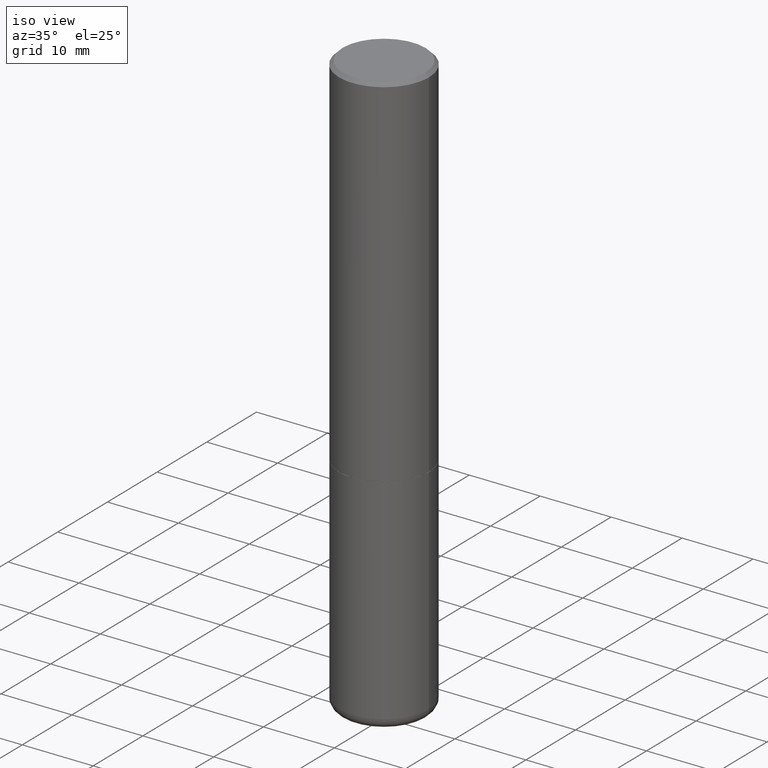
[diagram: clean part render]
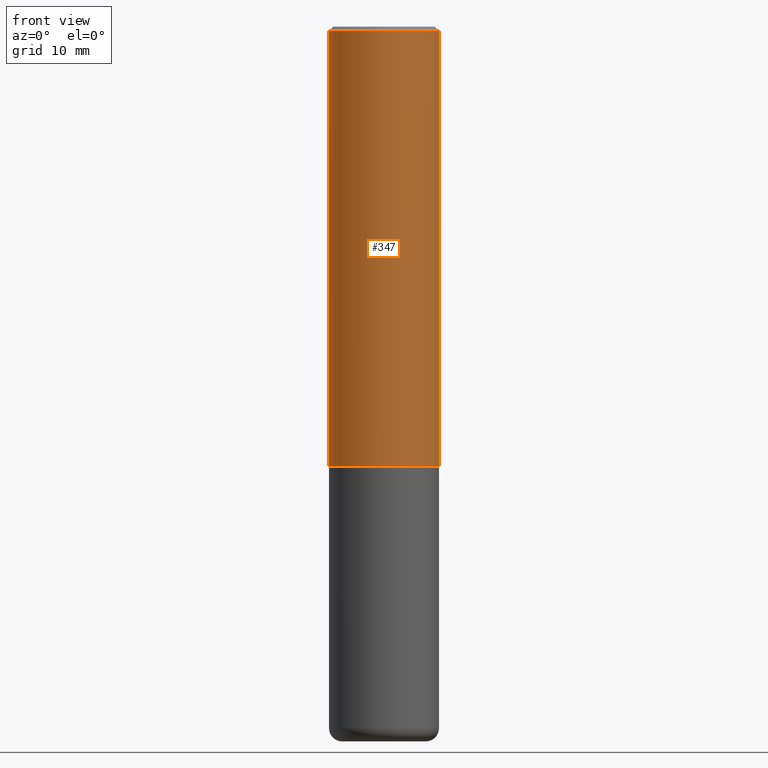
[diagram: tour spotlight — one face highlighted and labeled with its STEP entity id]
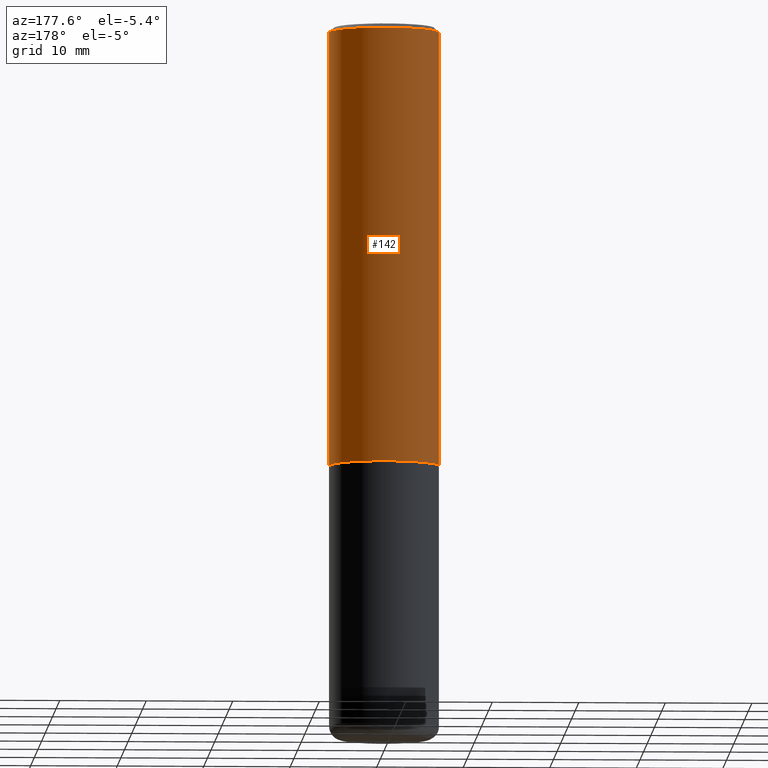
[diagram: tour spotlight — one face highlighted and labeled with its STEP entity id]
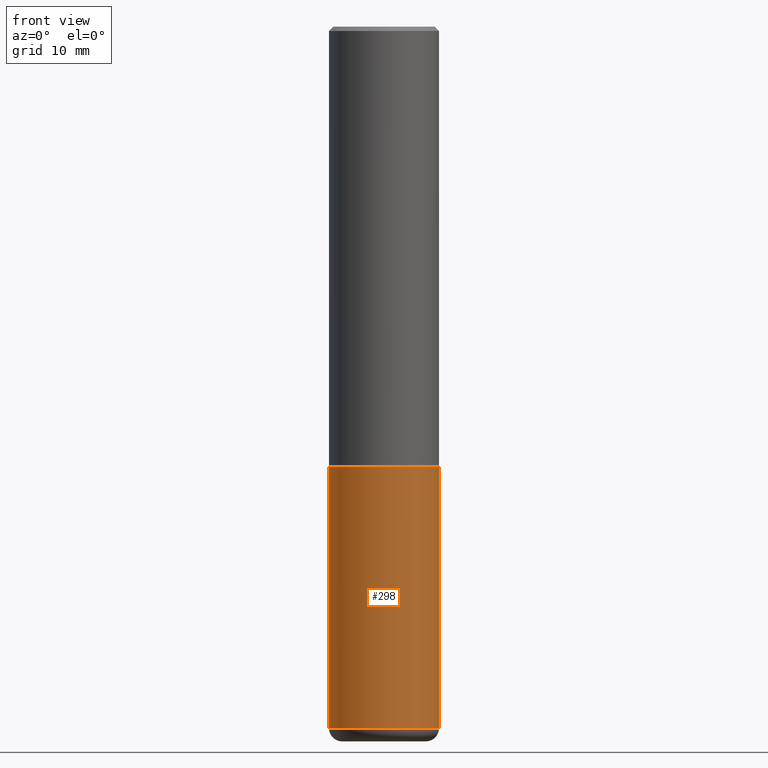
[diagram: tour spotlight — one face highlighted and labeled with its STEP entity id]
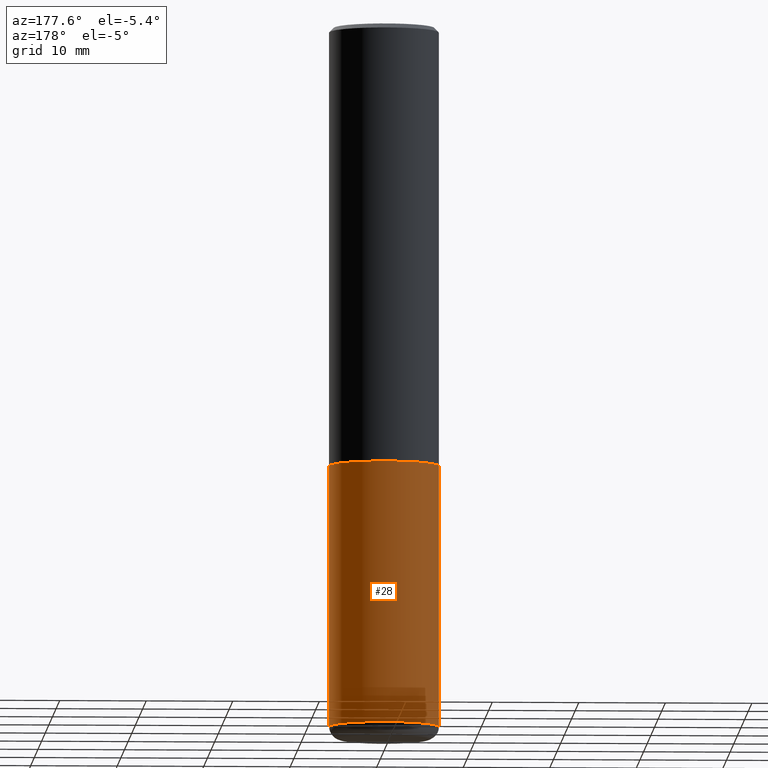
[diagram: tour spotlight — one face highlighted and labeled with its STEP entity id]
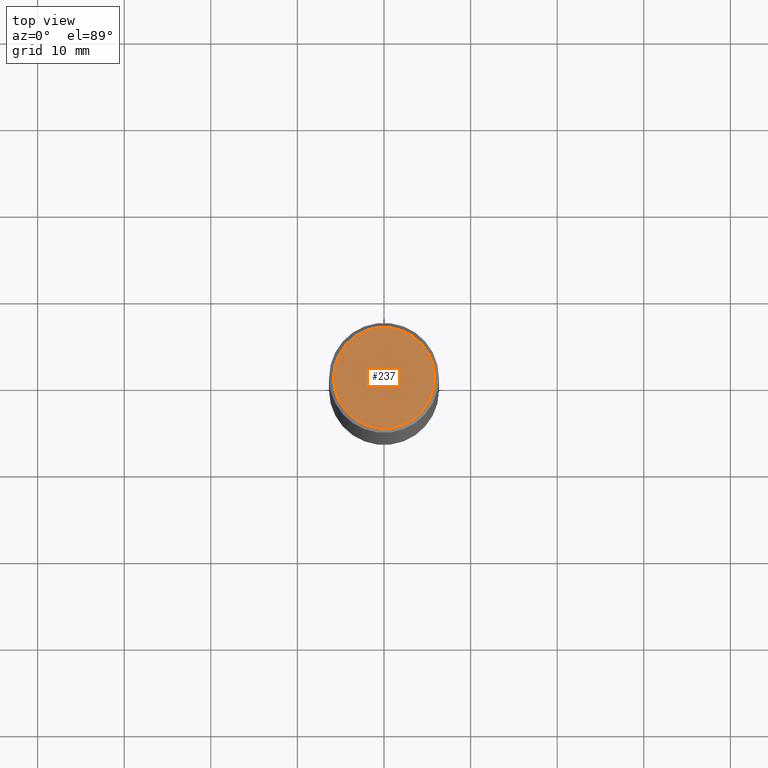
[diagram: tour spotlight — one face highlighted and labeled with its STEP entity id]
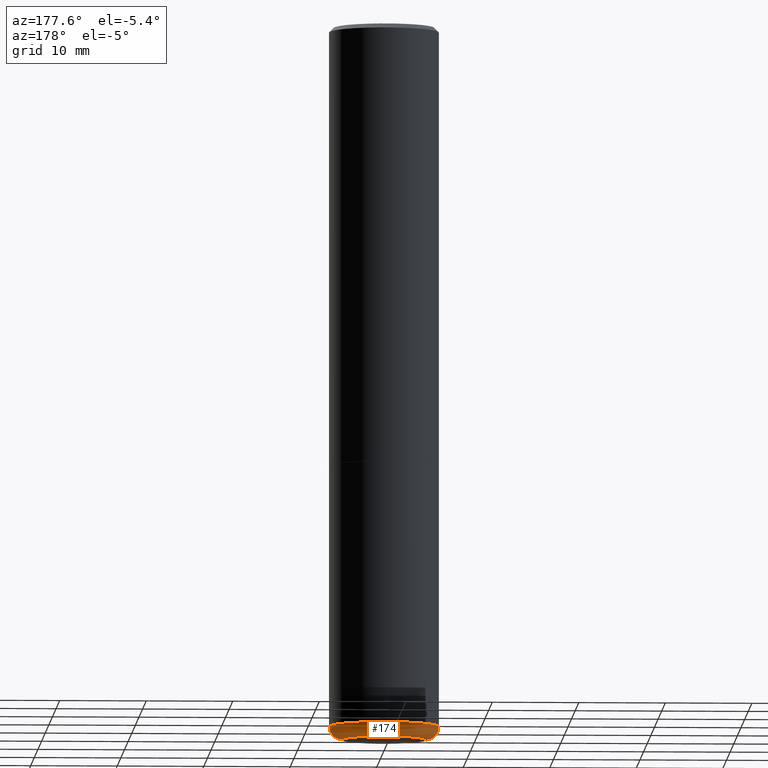
[diagram: tour spotlight — one face highlighted and labeled with its STEP entity id]
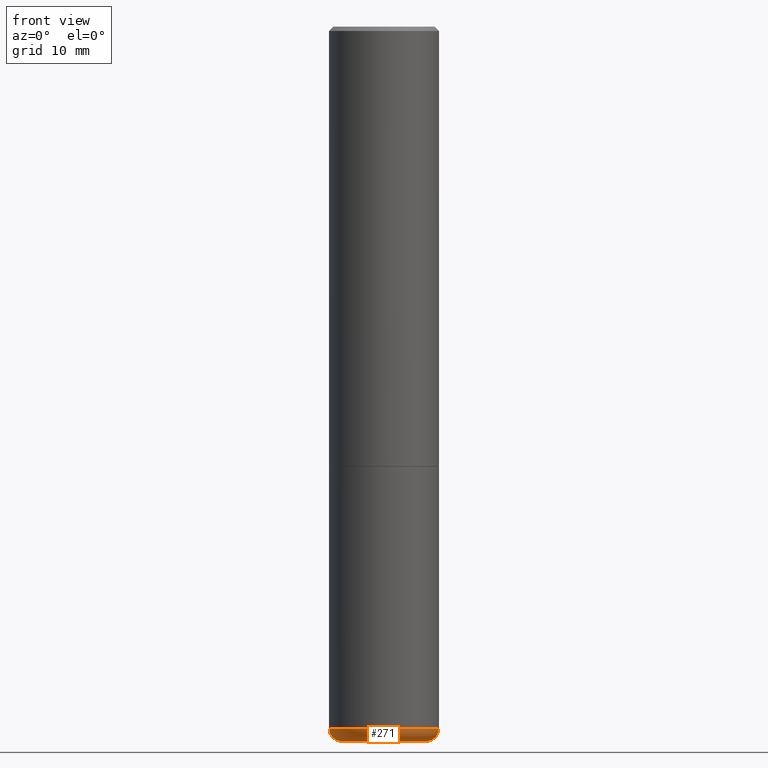
[diagram: tour spotlight — one face highlighted and labeled with its STEP entity id]
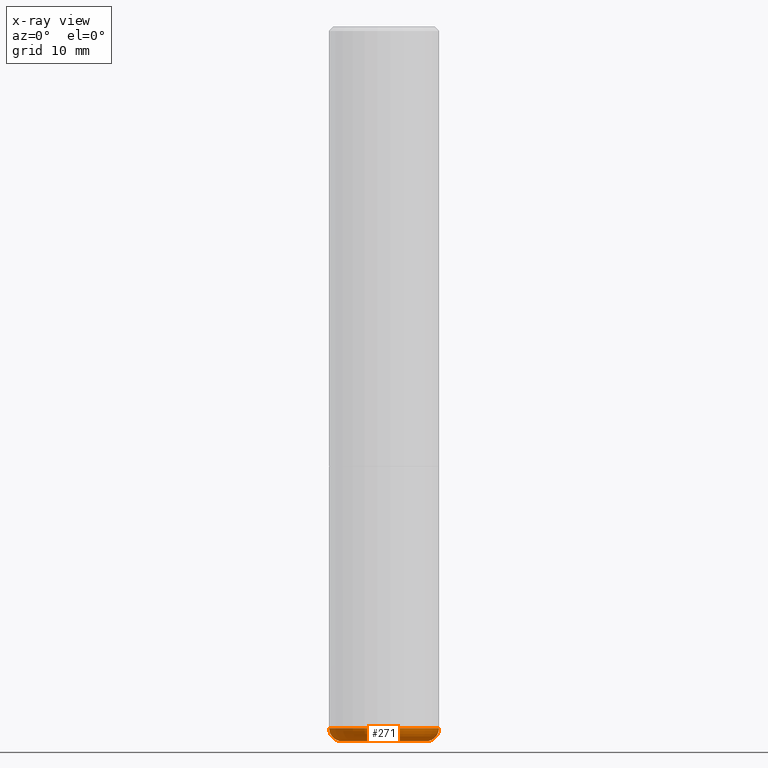
[diagram: x-ray of the same camera — body ghosted, this tour face saturated]
A machine part: a face-by-face anatomy tour. The part has 14 B-rep faces; the first image is the clean iso view, then the 7 largest visible faces are spotlighted one at a time (largest first), each with its STEP entity span.

Face 1 — front view, entity #347. In plain terms, the highlighted cylindrical surface (partial cylindrical patch) has radius 6.35 mm, axis along (-0, 0, 1).
Definition (entity closure, byte-faithful):
#10 = EDGE_CURVE ( 'NONE', #52, #260, #418, .T. ) ;
#11 = CIRCLE ( 'NONE', #190, 0.2499999999999999167 ) ;
#23 = CARTESIAN_POINT ( 'NONE',  ( 4.888492143564087591E-29, -6.979471196347447369E-15, -1.998999999999999888 ) ) ;
#52 = VERTEX_POINT ( 'NONE', #162 ) ;
#53 = DIRECTION ( 'NONE',  ( -2.445468806185136877E-29, 3.491481338843145188E-15, 1.000000000000000000 ) ) ;
#56 = DIRECTION ( 'NONE',  ( -2.445468806185136597E-29, 3.491481338843145583E-15, 1.000000000000000000 ) ) ;
#65 = ORIENTED_EDGE ( 'NONE', *, *, #370, .T. ) ;
#72 = CARTESIAN_POINT ( 'NONE',  ( -0.2500000000000002776, -1.748293572161900530E-15, -1.998999999999999888 ) ) ;
#80 = VECTOR ( 'NONE', #53, 39.37007874015748143 ) ;
#104 = EDGE_CURVE ( 'NONE', #391, #260, #11, .T. ) ;
#111 = LINE ( 'NONE', #343, #80 ) ;
#124 = CARTESIAN_POINT ( 'NONE',  ( 0.2500000000000001110, -1.745740669421567467E-15, 1.219044193948984509E-29 ) ) ;
#153 = FACE_OUTER_BOUND ( 'NONE', #233, .T. ) ;
#162 = CARTESIAN_POINT ( 'NONE',  ( 0.2500000000000002776, -8.725211865769015625E-15, -1.998999999999999888 ) ) ;
#180 = DIRECTION ( 'NONE',  ( 1.000000000000000000, -6.982962677686266711E-15, 4.876176775795935793E-29 ) ) ;
#182 = VERTEX_POINT ( 'NONE', #72 ) ;
#183 = CIRCLE ( 'NONE', #315, 0.2500000000000002776 ) ;
#186 = DIRECTION ( 'NONE',  ( 1.000000000000000000, -6.982962677686266711E-15, 0.000000000000000000 ) ) ;
#190 = AXIS2_PLACEMENT_3D ( 'NONE', #272, #297, #367 ) ;
#233 = EDGE_LOOP ( 'NONE', ( #380, #65, #344, #409 ) ) ;
#244 = DIRECTION ( 'NONE',  ( -2.445468806185136597E-29, 3.491481338843145583E-15, 1.000000000000000000 ) ) ;
#260 = VERTEX_POINT ( 'NONE', #348 ) ;
#266 = DIRECTION ( 'NONE',  ( -2.445468806185136877E-29, 3.491481338843145188E-15, 1.000000000000000000 ) ) ;
#272 = CARTESIAN_POINT ( 'NONE',  ( 4.890937612370287172E-31, -6.982962677686310098E-17, -0.02000000000000005593 ) ) ;
#297 = DIRECTION ( 'NONE',  ( -2.445468806185136597E-29, 3.491481338843145583E-15, 1.000000000000000000 ) ) ;
#300 = AXIS2_PLACEMENT_3D ( 'NONE', #373, #244, #180 ) ;
#315 = AXIS2_PLACEMENT_3D ( 'NONE', #23, #56, #186 ) ;
#340 = CARTESIAN_POINT ( 'NONE',  ( -0.2499999999999999167, 1.675911042644703182E-15, -0.02000000000000005593 ) ) ;
#341 = EDGE_CURVE ( 'NONE', #182, #391, #111, .T. ) ;
#343 = CARTESIAN_POINT ( 'NONE',  ( -0.2500000000000001110, 1.776356839400251254E-15, -1.229733772563727006E-29 ) ) ;
#344 = ORIENTED_EDGE ( 'NONE', *, *, #10, .T. ) ;
#347 = ADVANCED_FACE ( 'NONE', ( #153 ), #408, .T. ) ;
#348 = CARTESIAN_POINT ( 'NONE',  ( 0.2499999999999999167, -1.784954126219745400E-15, -0.02000000000000005593 ) ) ;
#367 = DIRECTION ( 'NONE',  ( 1.000000000000000000, -6.982962677686267499E-15, 0.000000000000000000 ) ) ;
#370 = EDGE_CURVE ( 'NONE', #182, #52, #183, .T. ) ;
#373 = CARTESIAN_POINT ( 'NONE',  ( 0.000000000000000000, 0.000000000000000000, 0.000000000000000000 ) ) ;
#380 = ORIENTED_EDGE ( 'NONE', *, *, #341, .F. ) ;
#391 = VERTEX_POINT ( 'NONE', #340 ) ;
#398 = VECTOR ( 'NONE', #266, 39.37007874015748143 ) ;
#408 = CYLINDRICAL_SURFACE ( 'NONE', #300, 0.2500000000000001110 ) ;
#409 = ORIENTED_EDGE ( 'NONE', *, *, #104, .F. ) ;
#418 = LINE ( 'NONE', #124, #398 ) ;

Face 2 — auxiliary view, entity #142. In plain terms, the highlighted cylindrical surface (partial cylindrical patch) has radius 6.35 mm, axis along (-0, 0, 1).
Definition (entity closure, byte-faithful):
#1 = EDGE_CURVE ( 'NONE', #260, #391, #147, .T. ) ;
#10 = EDGE_CURVE ( 'NONE', #52, #260, #418, .T. ) ;
#13 = DIRECTION ( 'NONE',  ( 1.000000000000000000, -6.982962677686266711E-15, 0.000000000000000000 ) ) ;
#15 = CARTESIAN_POINT ( 'NONE',  ( 0.000000000000000000, 0.000000000000000000, 0.000000000000000000 ) ) ;
#52 = VERTEX_POINT ( 'NONE', #162 ) ;
#53 = DIRECTION ( 'NONE',  ( -2.445468806185136877E-29, 3.491481338843145188E-15, 1.000000000000000000 ) ) ;
#54 = AXIS2_PLACEMENT_3D ( 'NONE', #15, #109, #362 ) ;
#59 = ORIENTED_EDGE ( 'NONE', *, *, #114, .T. ) ;
#62 = DIRECTION ( 'NONE',  ( -2.445468806185136597E-29, 3.491481338843145583E-15, 1.000000000000000000 ) ) ;
#72 = CARTESIAN_POINT ( 'NONE',  ( -0.2500000000000002776, -1.748293572161900530E-15, -1.998999999999999888 ) ) ;
#80 = VECTOR ( 'NONE', #53, 39.37007874015748143 ) ;
#91 = EDGE_LOOP ( 'NONE', ( #59, #154, #166, #372 ) ) ;
#108 = FACE_OUTER_BOUND ( 'NONE', #91, .T. ) ;
#109 = DIRECTION ( 'NONE',  ( -2.445468806185136597E-29, 3.491481338843145583E-15, 1.000000000000000000 ) ) ;
#111 = LINE ( 'NONE', #343, #80 ) ;
#114 = EDGE_CURVE ( 'NONE', #52, #182, #209, .T. ) ;
#124 = CARTESIAN_POINT ( 'NONE',  ( 0.2500000000000001110, -1.745740669421567467E-15, 1.219044193948984509E-29 ) ) ;
#140 = DIRECTION ( 'NONE',  ( -2.445468806185136597E-29, 3.491481338843145583E-15, 1.000000000000000000 ) ) ;
#142 = ADVANCED_FACE ( 'NONE', ( #108 ), #333, .T. ) ;
#143 = CARTESIAN_POINT ( 'NONE',  ( 4.888492143564087591E-29, -6.979471196347447369E-15, -1.998999999999999888 ) ) ;
#147 = CIRCLE ( 'NONE', #397, 0.2499999999999999167 ) ;
#154 = ORIENTED_EDGE ( 'NONE', *, *, #341, .T. ) ;
#162 = CARTESIAN_POINT ( 'NONE',  ( 0.2500000000000002776, -8.725211865769015625E-15, -1.998999999999999888 ) ) ;
#166 = ORIENTED_EDGE ( 'NONE', *, *, #1, .F. ) ;
#182 = VERTEX_POINT ( 'NONE', #72 ) ;
#192 = CARTESIAN_POINT ( 'NONE',  ( 4.890937612370287172E-31, -6.982962677686310098E-17, -0.02000000000000005593 ) ) ;
#209 = CIRCLE ( 'NONE', #274, 0.2500000000000002776 ) ;
#260 = VERTEX_POINT ( 'NONE', #348 ) ;
#266 = DIRECTION ( 'NONE',  ( -2.445468806185136877E-29, 3.491481338843145188E-15, 1.000000000000000000 ) ) ;
#267 = DIRECTION ( 'NONE',  ( 1.000000000000000000, -6.982962677686267499E-15, 0.000000000000000000 ) ) ;
#274 = AXIS2_PLACEMENT_3D ( 'NONE', #143, #140, #13 ) ;
#333 = CYLINDRICAL_SURFACE ( 'NONE', #54, 0.2500000000000001110 ) ;
#340 = CARTESIAN_POINT ( 'NONE',  ( -0.2499999999999999167, 1.675911042644703182E-15, -0.02000000000000005593 ) ) ;
#341 = EDGE_CURVE ( 'NONE', #182, #391, #111, .T. ) ;
#343 = CARTESIAN_POINT ( 'NONE',  ( -0.2500000000000001110, 1.776356839400251254E-15, -1.229733772563727006E-29 ) ) ;
#348 = CARTESIAN_POINT ( 'NONE',  ( 0.2499999999999999167, -1.784954126219745400E-15, -0.02000000000000005593 ) ) ;
#362 = DIRECTION ( 'NONE',  ( 1.000000000000000000, -6.982962677686266711E-15, 4.876176775795935793E-29 ) ) ;
#372 = ORIENTED_EDGE ( 'NONE', *, *, #10, .F. ) ;
#391 = VERTEX_POINT ( 'NONE', #340 ) ;
#397 = AXIS2_PLACEMENT_3D ( 'NONE', #192, #62, #267 ) ;
#398 = VECTOR ( 'NONE', #266, 39.37007874015748143 ) ;
#418 = LINE ( 'NONE', #124, #398 ) ;

Face 3 — front view, entity #298. In plain terms, the highlighted cylindrical surface (partial cylindrical patch) has radius 6.35 mm, axis along (-0, 0, 1).
Definition (entity closure, byte-faithful):
#12 = CARTESIAN_POINT ( 'NONE',  ( -0.2499999999999999722, -9.361468631509382488E-15, -3.189999999999999947 ) ) ;
#17 = CIRCLE ( 'NONE', #345, 0.2500000000000000000 ) ;
#18 = EDGE_CURVE ( 'NONE', #220, #314, #93, .T. ) ;
#42 = AXIS2_PLACEMENT_3D ( 'NONE', #83, #87, #113 ) ;
#43 = LINE ( 'NONE', #106, #69 ) ;
#49 = DIRECTION ( 'NONE',  ( -2.445468806185136877E-29, 3.491481338843145188E-15, 1.000000000000000000 ) ) ;
#66 = ORIENTED_EDGE ( 'NONE', *, *, #136, .F. ) ;
#69 = VECTOR ( 'NONE', #49, 39.37007874015748143 ) ;
#73 = CARTESIAN_POINT ( 'NONE',  ( 0.2499999999999999722, -1.288356614033120121E-14, -3.189999999999999947 ) ) ;
#81 = FACE_OUTER_BOUND ( 'NONE', #411, .T. ) ;
#83 = CARTESIAN_POINT ( 'NONE',  ( 0.000000000000000000, 0.000000000000000000, 0.000000000000000000 ) ) ;
#84 = EDGE_CURVE ( 'NONE', #220, #194, #86, .T. ) ;
#86 = CIRCLE ( 'NONE', #148, 0.2500000000000000000 ) ;
#87 = DIRECTION ( 'NONE',  ( -2.445468806185136597E-29, 3.491481338843145583E-15, 1.000000000000000000 ) ) ;
#93 = LINE ( 'NONE', #229, #293 ) ;
#99 = DIRECTION ( 'NONE',  ( -2.445468806185136877E-29, 3.491481338843145188E-15, 1.000000000000000000 ) ) ;
#106 = CARTESIAN_POINT ( 'NONE',  ( 0.2500000000000000000, -1.745740669421566678E-15, 1.219044193948983948E-29 ) ) ;
#113 = DIRECTION ( 'NONE',  ( 1.000000000000000000, -6.982962677686266711E-15, 4.876176775795935793E-29 ) ) ;
#136 = EDGE_CURVE ( 'NONE', #314, #199, #17, .T. ) ;
#139 = CARTESIAN_POINT ( 'NONE',  ( 0.2500000000000000000, -8.728703347107857054E-15, -2.000000000000000000 ) ) ;
#148 = AXIS2_PLACEMENT_3D ( 'NONE', #295, #207, #175 ) ;
#171 = DIRECTION ( 'NONE',  ( 1.000000000000000000, -6.982962677686266711E-15, 0.000000000000000000 ) ) ;
#175 = DIRECTION ( 'NONE',  ( 1.000000000000000000, -6.982962677686270655E-15, 0.000000000000000000 ) ) ;
#194 = VERTEX_POINT ( 'NONE', #73 ) ;
#199 = VERTEX_POINT ( 'NONE', #139 ) ;
#206 = CARTESIAN_POINT ( 'NONE',  ( 4.890937612370273194E-29, -6.982962677686291165E-15, -2.000000000000000000 ) ) ;
#207 = DIRECTION ( 'NONE',  ( -2.445468806185136597E-29, 3.491481338843145583E-15, 1.000000000000000000 ) ) ;
#218 = EDGE_CURVE ( 'NONE', #194, #199, #43, .T. ) ;
#220 = VERTEX_POINT ( 'NONE', #12 ) ;
#227 = ORIENTED_EDGE ( 'NONE', *, *, #18, .F. ) ;
#229 = CARTESIAN_POINT ( 'NONE',  ( -0.2500000000000000000, 1.776356839400250465E-15, -1.229733772563726445E-29 ) ) ;
#277 = CYLINDRICAL_SURFACE ( 'NONE', #42, 0.2500000000000000000 ) ;
#289 = ORIENTED_EDGE ( 'NONE', *, *, #84, .T. ) ;
#293 = VECTOR ( 'NONE', #99, 39.37007874015748143 ) ;
#295 = CARTESIAN_POINT ( 'NONE',  ( 7.801045491730585789E-29, -1.113782547090963453E-14, -3.189999999999999947 ) ) ;
#298 = ADVANCED_FACE ( 'NONE', ( #81 ), #277, .T. ) ;
#311 = CARTESIAN_POINT ( 'NONE',  ( -0.2500000000000000000, -7.284037234897712778E-15, -2.000000000000000000 ) ) ;
#314 = VERTEX_POINT ( 'NONE', #311 ) ;
#345 = AXIS2_PLACEMENT_3D ( 'NONE', #206, #400, #171 ) ;
#349 = ORIENTED_EDGE ( 'NONE', *, *, #218, .T. ) ;
#400 = DIRECTION ( 'NONE',  ( -2.445468806185136597E-29, 3.491481338843145583E-15, 1.000000000000000000 ) ) ;
#411 = EDGE_LOOP ( 'NONE', ( #227, #289, #349, #66 ) ) ;

Face 4 — auxiliary view, entity #28. In plain terms, the highlighted cylindrical surface (partial cylindrical patch) has radius 6.35 mm, axis along (-0, 0, 1).
Definition (entity closure, byte-faithful):
#12 = CARTESIAN_POINT ( 'NONE',  ( -0.2499999999999999722, -9.361468631509382488E-15, -3.189999999999999947 ) ) ;
#16 = AXIS2_PLACEMENT_3D ( 'NONE', #39, #168, #291 ) ;
#18 = EDGE_CURVE ( 'NONE', #220, #314, #93, .T. ) ;
#28 = ADVANCED_FACE ( 'NONE', ( #31 ), #326, .T. ) ;
#31 = FACE_OUTER_BOUND ( 'NONE', #390, .T. ) ;
#37 = AXIS2_PLACEMENT_3D ( 'NONE', #375, #216, #181 ) ;
#39 = CARTESIAN_POINT ( 'NONE',  ( 0.000000000000000000, 0.000000000000000000, 0.000000000000000000 ) ) ;
#43 = LINE ( 'NONE', #106, #69 ) ;
#49 = DIRECTION ( 'NONE',  ( -2.445468806185136877E-29, 3.491481338843145188E-15, 1.000000000000000000 ) ) ;
#55 = ORIENTED_EDGE ( 'NONE', *, *, #18, .T. ) ;
#69 = VECTOR ( 'NONE', #49, 39.37007874015748143 ) ;
#73 = CARTESIAN_POINT ( 'NONE',  ( 0.2499999999999999722, -1.288356614033120121E-14, -3.189999999999999947 ) ) ;
#93 = LINE ( 'NONE', #229, #293 ) ;
#99 = DIRECTION ( 'NONE',  ( -2.445468806185136877E-29, 3.491481338843145188E-15, 1.000000000000000000 ) ) ;
#102 = CIRCLE ( 'NONE', #37, 0.2500000000000000000 ) ;
#106 = CARTESIAN_POINT ( 'NONE',  ( 0.2500000000000000000, -1.745740669421566678E-15, 1.219044193948983948E-29 ) ) ;
#119 = DIRECTION ( 'NONE',  ( 1.000000000000000000, -6.982962677686270655E-15, 0.000000000000000000 ) ) ;
#139 = CARTESIAN_POINT ( 'NONE',  ( 0.2500000000000000000, -8.728703347107857054E-15, -2.000000000000000000 ) ) ;
#158 = ORIENTED_EDGE ( 'NONE', *, *, #218, .F. ) ;
#168 = DIRECTION ( 'NONE',  ( -2.445468806185136597E-29, 3.491481338843145583E-15, 1.000000000000000000 ) ) ;
#181 = DIRECTION ( 'NONE',  ( 1.000000000000000000, -6.982962677686266711E-15, 0.000000000000000000 ) ) ;
#194 = VERTEX_POINT ( 'NONE', #73 ) ;
#199 = VERTEX_POINT ( 'NONE', #139 ) ;
#216 = DIRECTION ( 'NONE',  ( -2.445468806185136597E-29, 3.491481338843145583E-15, 1.000000000000000000 ) ) ;
#218 = EDGE_CURVE ( 'NONE', #194, #199, #43, .T. ) ;
#220 = VERTEX_POINT ( 'NONE', #12 ) ;
#229 = CARTESIAN_POINT ( 'NONE',  ( -0.2500000000000000000, 1.776356839400250465E-15, -1.229733772563726445E-29 ) ) ;
#279 = AXIS2_PLACEMENT_3D ( 'NONE', #302, #412, #119 ) ;
#288 = EDGE_CURVE ( 'NONE', #199, #314, #102, .T. ) ;
#291 = DIRECTION ( 'NONE',  ( 1.000000000000000000, -6.982962677686266711E-15, 4.876176775795935793E-29 ) ) ;
#293 = VECTOR ( 'NONE', #99, 39.37007874015748143 ) ;
#302 = CARTESIAN_POINT ( 'NONE',  ( 7.801045491730585789E-29, -1.113782547090963453E-14, -3.189999999999999947 ) ) ;
#311 = CARTESIAN_POINT ( 'NONE',  ( -0.2500000000000000000, -7.284037234897712778E-15, -2.000000000000000000 ) ) ;
#314 = VERTEX_POINT ( 'NONE', #311 ) ;
#326 = CYLINDRICAL_SURFACE ( 'NONE', #16, 0.2500000000000000000 ) ;
#342 = ORIENTED_EDGE ( 'NONE', *, *, #288, .F. ) ;
#356 = ORIENTED_EDGE ( 'NONE', *, *, #378, .T. ) ;
#371 = CIRCLE ( 'NONE', #279, 0.2500000000000000000 ) ;
#375 = CARTESIAN_POINT ( 'NONE',  ( 4.890937612370273194E-29, -6.982962677686291165E-15, -2.000000000000000000 ) ) ;
#378 = EDGE_CURVE ( 'NONE', #194, #220, #371, .T. ) ;
#390 = EDGE_LOOP ( 'NONE', ( #356, #55, #342, #158 ) ) ;
#412 = DIRECTION ( 'NONE',  ( -2.445468806185136597E-29, 3.491481338843145583E-15, 1.000000000000000000 ) ) ;

Face 5 — top view, entity #237. In plain terms, the highlighted planar face has unit normal (0, -0, -1).
Definition (entity closure, byte-faithful):
#29 = ORIENTED_EDGE ( 'NONE', *, *, #334, .T. ) ;
#47 = CIRCLE ( 'NONE', #156, 0.2299999999999999267 ) ;
#82 = ORIENTED_EDGE ( 'NONE', *, *, #361, .T. ) ;
#105 = PLANE ( 'NONE',  #127 ) ;
#115 = DIRECTION ( 'NONE',  ( -2.445468806185136597E-29, 3.491481338843145583E-15, 1.000000000000000000 ) ) ;
#127 = AXIS2_PLACEMENT_3D ( 'NONE', #134, #236, #204 ) ;
#134 = CARTESIAN_POINT ( 'NONE',  ( 1.606081415867840870E-15, 0.2299999999999999267, -8.073092204240237214E-16 ) ) ;
#156 = AXIS2_PLACEMENT_3D ( 'NONE', #280, #246, #403 ) ;
#188 = CARTESIAN_POINT ( 'NONE',  ( -0.2299999999999999267, 1.640996229256272125E-15, -8.537024980212177841E-18 ) ) ;
#189 = EDGE_LOOP ( 'NONE', ( #82, #29 ) ) ;
#204 = DIRECTION ( 'NONE',  ( -1.000000000000000000, 6.982962677686265922E-15, -4.876176775795935793E-29 ) ) ;
#236 = DIRECTION ( 'NONE',  ( 2.438088387897960049E-29, -3.491481338843145188E-15, -1.000000000000000000 ) ) ;
#237 = ADVANCED_FACE ( 'NONE', ( #301 ), #105, .F. ) ;
#246 = DIRECTION ( 'NONE',  ( -2.445468806185136597E-29, 3.491481338843145583E-15, 1.000000000000000000 ) ) ;
#280 = CARTESIAN_POINT ( 'NONE',  ( 2.087702828670439639E-46, -2.980686340760894400E-32, -8.537024980200822558E-18 ) ) ;
#281 = CARTESIAN_POINT ( 'NONE',  ( 0.2299999999999999267, -1.681434332853598617E-15, -8.537024980189327067E-18 ) ) ;
#301 = FACE_OUTER_BOUND ( 'NONE', #189, .T. ) ;
#305 = AXIS2_PLACEMENT_3D ( 'NONE', #308, #115, #346 ) ;
#308 = CARTESIAN_POINT ( 'NONE',  ( 2.087702828670439639E-46, -2.980686340760894400E-32, -8.537024980200822558E-18 ) ) ;
#334 = EDGE_CURVE ( 'NONE', #374, #413, #47, .T. ) ;
#346 = DIRECTION ( 'NONE',  ( 1.000000000000000000, -6.982962677686267499E-15, 4.876225828469310563E-29 ) ) ;
#361 = EDGE_CURVE ( 'NONE', #413, #374, #392, .T. ) ;
#374 = VERTEX_POINT ( 'NONE', #281 ) ;
#392 = CIRCLE ( 'NONE', #305, 0.2299999999999999267 ) ;
#403 = DIRECTION ( 'NONE',  ( 1.000000000000000000, -6.982962677686267499E-15, 4.876225828469310563E-29 ) ) ;
#413 = VERTEX_POINT ( 'NONE', #188 ) ;

Face 6 — auxiliary view, entity #174. In plain terms, the highlighted toroidal blend (fillet) surface has major radius 4.826 mm and minor (blend) radius 1.524 mm.
Definition (entity closure, byte-faithful):
#8 = ORIENTED_EDGE ( 'NONE', *, *, #20, .T. ) ;
#12 = CARTESIAN_POINT ( 'NONE',  ( -0.2499999999999999722, -9.361468631509382488E-15, -3.189999999999999947 ) ) ;
#20 = EDGE_CURVE ( 'NONE', #377, #247, #385, .T. ) ;
#21 = CARTESIAN_POINT ( 'NONE',  ( -0.1899999999999999745, -9.679375892402709259E-15, -3.250000000000000000 ) ) ;
#30 = AXIS2_PLACEMENT_3D ( 'NONE', #150, #152, #410 ) ;
#35 = AXIS2_PLACEMENT_3D ( 'NONE', #68, #317, #358 ) ;
#36 = CIRCLE ( 'NONE', #30, 0.05999999999999994227 ) ;
#41 = DIRECTION ( 'NONE',  ( -1.000000000000000000, 7.105427357600997914E-15, 0.000000000000000000 ) ) ;
#46 = DIRECTION ( 'NONE',  ( 1.000000000000000000, -6.982962677686265133E-15, 4.883557194083112340E-29 ) ) ;
#68 = CARTESIAN_POINT ( 'NONE',  ( 7.947773620101693940E-29, -1.134731435124022443E-14, -3.250000000000000000 ) ) ;
#73 = CARTESIAN_POINT ( 'NONE',  ( 0.2499999999999999722, -1.288356614033120121E-14, -3.189999999999999947 ) ) ;
#119 = DIRECTION ( 'NONE',  ( 1.000000000000000000, -6.982962677686270655E-15, 0.000000000000000000 ) ) ;
#138 = FACE_OUTER_BOUND ( 'NONE', #339, .T. ) ;
#150 = CARTESIAN_POINT ( 'NONE',  ( 0.1899999999999999745, -1.246458837967002615E-14, -3.189999999999999947 ) ) ;
#152 = DIRECTION ( 'NONE',  ( -6.982962677686266711E-15, -1.000000000000000000, 3.491481338843145583E-15 ) ) ;
#174 = ADVANCED_FACE ( 'NONE', ( #138 ), #245, .T. ) ;
#177 = AXIS2_PLACEMENT_3D ( 'NONE', #329, #299, #41 ) ;
#194 = VERTEX_POINT ( 'NONE', #73 ) ;
#202 = EDGE_CURVE ( 'NONE', #247, #220, #336, .T. ) ;
#220 = VERTEX_POINT ( 'NONE', #12 ) ;
#245 = TOROIDAL_SURFACE ( 'NONE', #294, 0.1899999999999999745, 0.05999999999999995615 ) ;
#247 = VERTEX_POINT ( 'NONE', #21 ) ;
#252 = ORIENTED_EDGE ( 'NONE', *, *, #320, .F. ) ;
#273 = DIRECTION ( 'NONE',  ( -2.445468806185136597E-29, 3.491481338843145583E-15, 1.000000000000000000 ) ) ;
#279 = AXIS2_PLACEMENT_3D ( 'NONE', #302, #412, #119 ) ;
#282 = CARTESIAN_POINT ( 'NONE',  ( 0.1899999999999999745, -1.267407726000061289E-14, -3.250000000000000000 ) ) ;
#285 = ORIENTED_EDGE ( 'NONE', *, *, #202, .T. ) ;
#294 = AXIS2_PLACEMENT_3D ( 'NONE', #396, #273, #46 ) ;
#299 = DIRECTION ( 'NONE',  ( 7.105427357601001859E-15, 1.000000000000000000, -3.491481338843145583E-15 ) ) ;
#302 = CARTESIAN_POINT ( 'NONE',  ( 7.801045491730585789E-29, -1.113782547090963453E-14, -3.189999999999999947 ) ) ;
#317 = DIRECTION ( 'NONE',  ( -2.445468806185136597E-29, 3.491481338843145583E-15, 1.000000000000000000 ) ) ;
#320 = EDGE_CURVE ( 'NONE', #377, #194, #36, .T. ) ;
#329 = CARTESIAN_POINT ( 'NONE',  ( -0.1899999999999999745, -9.787794272965444556E-15, -3.189999999999999947 ) ) ;
#336 = CIRCLE ( 'NONE', #177, 0.05999999999999994227 ) ;
#339 = EDGE_LOOP ( 'NONE', ( #8, #285, #407, #252 ) ) ;
#358 = DIRECTION ( 'NONE',  ( 1.000000000000000000, -6.982962677686261977E-15, 0.000000000000000000 ) ) ;
#371 = CIRCLE ( 'NONE', #279, 0.2500000000000000000 ) ;
#377 = VERTEX_POINT ( 'NONE', #282 ) ;
#378 = EDGE_CURVE ( 'NONE', #194, #220, #371, .T. ) ;
#385 = CIRCLE ( 'NONE', #35, 0.1899999999999999745 ) ;
#396 = CARTESIAN_POINT ( 'NONE',  ( 7.801045491730585789E-29, -1.113782547090963453E-14, -3.189999999999999947 ) ) ;
#407 = ORIENTED_EDGE ( 'NONE', *, *, #378, .F. ) ;
#410 = DIRECTION ( 'NONE',  ( 1.000000000000000000, -6.982962677686274599E-15, 0.000000000000000000 ) ) ;
#412 = DIRECTION ( 'NONE',  ( -2.445468806185136597E-29, 3.491481338843145583E-15, 1.000000000000000000 ) ) ;

Face 7 — front view, entity #271. An x-ray twin of the same camera follows (body ghosted, this face saturated) — the face is partly hidden behind the body. In plain terms, the highlighted toroidal blend (fillet) surface has major radius 4.826 mm and minor (blend) radius 1.524 mm.
Definition (entity closure, byte-faithful):
#12 = CARTESIAN_POINT ( 'NONE',  ( -0.2499999999999999722, -9.361468631509382488E-15, -3.189999999999999947 ) ) ;
#21 = CARTESIAN_POINT ( 'NONE',  ( -0.1899999999999999745, -9.679375892402709259E-15, -3.250000000000000000 ) ) ;
#30 = AXIS2_PLACEMENT_3D ( 'NONE', #150, #152, #410 ) ;
#36 = CIRCLE ( 'NONE', #30, 0.05999999999999994227 ) ;
#41 = DIRECTION ( 'NONE',  ( -1.000000000000000000, 7.105427357600997914E-15, 0.000000000000000000 ) ) ;
#51 = DIRECTION ( 'NONE',  ( -2.445468806185136597E-29, 3.491481338843145583E-15, 1.000000000000000000 ) ) ;
#57 = ORIENTED_EDGE ( 'NONE', *, *, #84, .F. ) ;
#58 = FACE_OUTER_BOUND ( 'NONE', #310, .T. ) ;
#73 = CARTESIAN_POINT ( 'NONE',  ( 0.2499999999999999722, -1.288356614033120121E-14, -3.189999999999999947 ) ) ;
#74 = AXIS2_PLACEMENT_3D ( 'NONE', #248, #51, #376 ) ;
#84 = EDGE_CURVE ( 'NONE', #220, #194, #86, .T. ) ;
#86 = CIRCLE ( 'NONE', #148, 0.2500000000000000000 ) ;
#89 = DIRECTION ( 'NONE',  ( 1.000000000000000000, -6.982962677686261977E-15, 0.000000000000000000 ) ) ;
#94 = CIRCLE ( 'NONE', #330, 0.1899999999999999745 ) ;
#146 = ORIENTED_EDGE ( 'NONE', *, *, #320, .T. ) ;
#148 = AXIS2_PLACEMENT_3D ( 'NONE', #295, #207, #175 ) ;
#150 = CARTESIAN_POINT ( 'NONE',  ( 0.1899999999999999745, -1.246458837967002615E-14, -3.189999999999999947 ) ) ;
#152 = DIRECTION ( 'NONE',  ( -6.982962677686266711E-15, -1.000000000000000000, 3.491481338843145583E-15 ) ) ;
#175 = DIRECTION ( 'NONE',  ( 1.000000000000000000, -6.982962677686270655E-15, 0.000000000000000000 ) ) ;
#177 = AXIS2_PLACEMENT_3D ( 'NONE', #329, #299, #41 ) ;
#194 = VERTEX_POINT ( 'NONE', #73 ) ;
#202 = EDGE_CURVE ( 'NONE', #247, #220, #336, .T. ) ;
#207 = DIRECTION ( 'NONE',  ( -2.445468806185136597E-29, 3.491481338843145583E-15, 1.000000000000000000 ) ) ;
#212 = CARTESIAN_POINT ( 'NONE',  ( 7.947773620101693940E-29, -1.134731435124022443E-14, -3.250000000000000000 ) ) ;
#220 = VERTEX_POINT ( 'NONE', #12 ) ;
#232 = TOROIDAL_SURFACE ( 'NONE', #74, 0.1899999999999999745, 0.05999999999999995615 ) ;
#247 = VERTEX_POINT ( 'NONE', #21 ) ;
#248 = CARTESIAN_POINT ( 'NONE',  ( 7.801045491730585789E-29, -1.113782547090963453E-14, -3.189999999999999947 ) ) ;
#255 = DIRECTION ( 'NONE',  ( -2.445468806185136597E-29, 3.491481338843145583E-15, 1.000000000000000000 ) ) ;
#271 = ADVANCED_FACE ( 'NONE', ( #58 ), #232, .T. ) ;
#282 = CARTESIAN_POINT ( 'NONE',  ( 0.1899999999999999745, -1.267407726000061289E-14, -3.250000000000000000 ) ) ;
#295 = CARTESIAN_POINT ( 'NONE',  ( 7.801045491730585789E-29, -1.113782547090963453E-14, -3.189999999999999947 ) ) ;
#299 = DIRECTION ( 'NONE',  ( 7.105427357601001859E-15, 1.000000000000000000, -3.491481338843145583E-15 ) ) ;
#310 = EDGE_LOOP ( 'NONE', ( #360, #416, #146, #57 ) ) ;
#320 = EDGE_CURVE ( 'NONE', #377, #194, #36, .T. ) ;
#329 = CARTESIAN_POINT ( 'NONE',  ( -0.1899999999999999745, -9.787794272965444556E-15, -3.189999999999999947 ) ) ;
#330 = AXIS2_PLACEMENT_3D ( 'NONE', #212, #255, #89 ) ;
#336 = CIRCLE ( 'NONE', #177, 0.05999999999999994227 ) ;
#360 = ORIENTED_EDGE ( 'NONE', *, *, #202, .F. ) ;
#376 = DIRECTION ( 'NONE',  ( 1.000000000000000000, -6.982962677686265133E-15, 4.883557194083112340E-29 ) ) ;
#377 = VERTEX_POINT ( 'NONE', #282 ) ;
#399 = EDGE_CURVE ( 'NONE', #247, #377, #94, .T. ) ;
#410 = DIRECTION ( 'NONE',  ( 1.000000000000000000, -6.982962677686274599E-15, 0.000000000000000000 ) ) ;
#416 = ORIENTED_EDGE ( 'NONE', *, *, #399, .T. ) ;